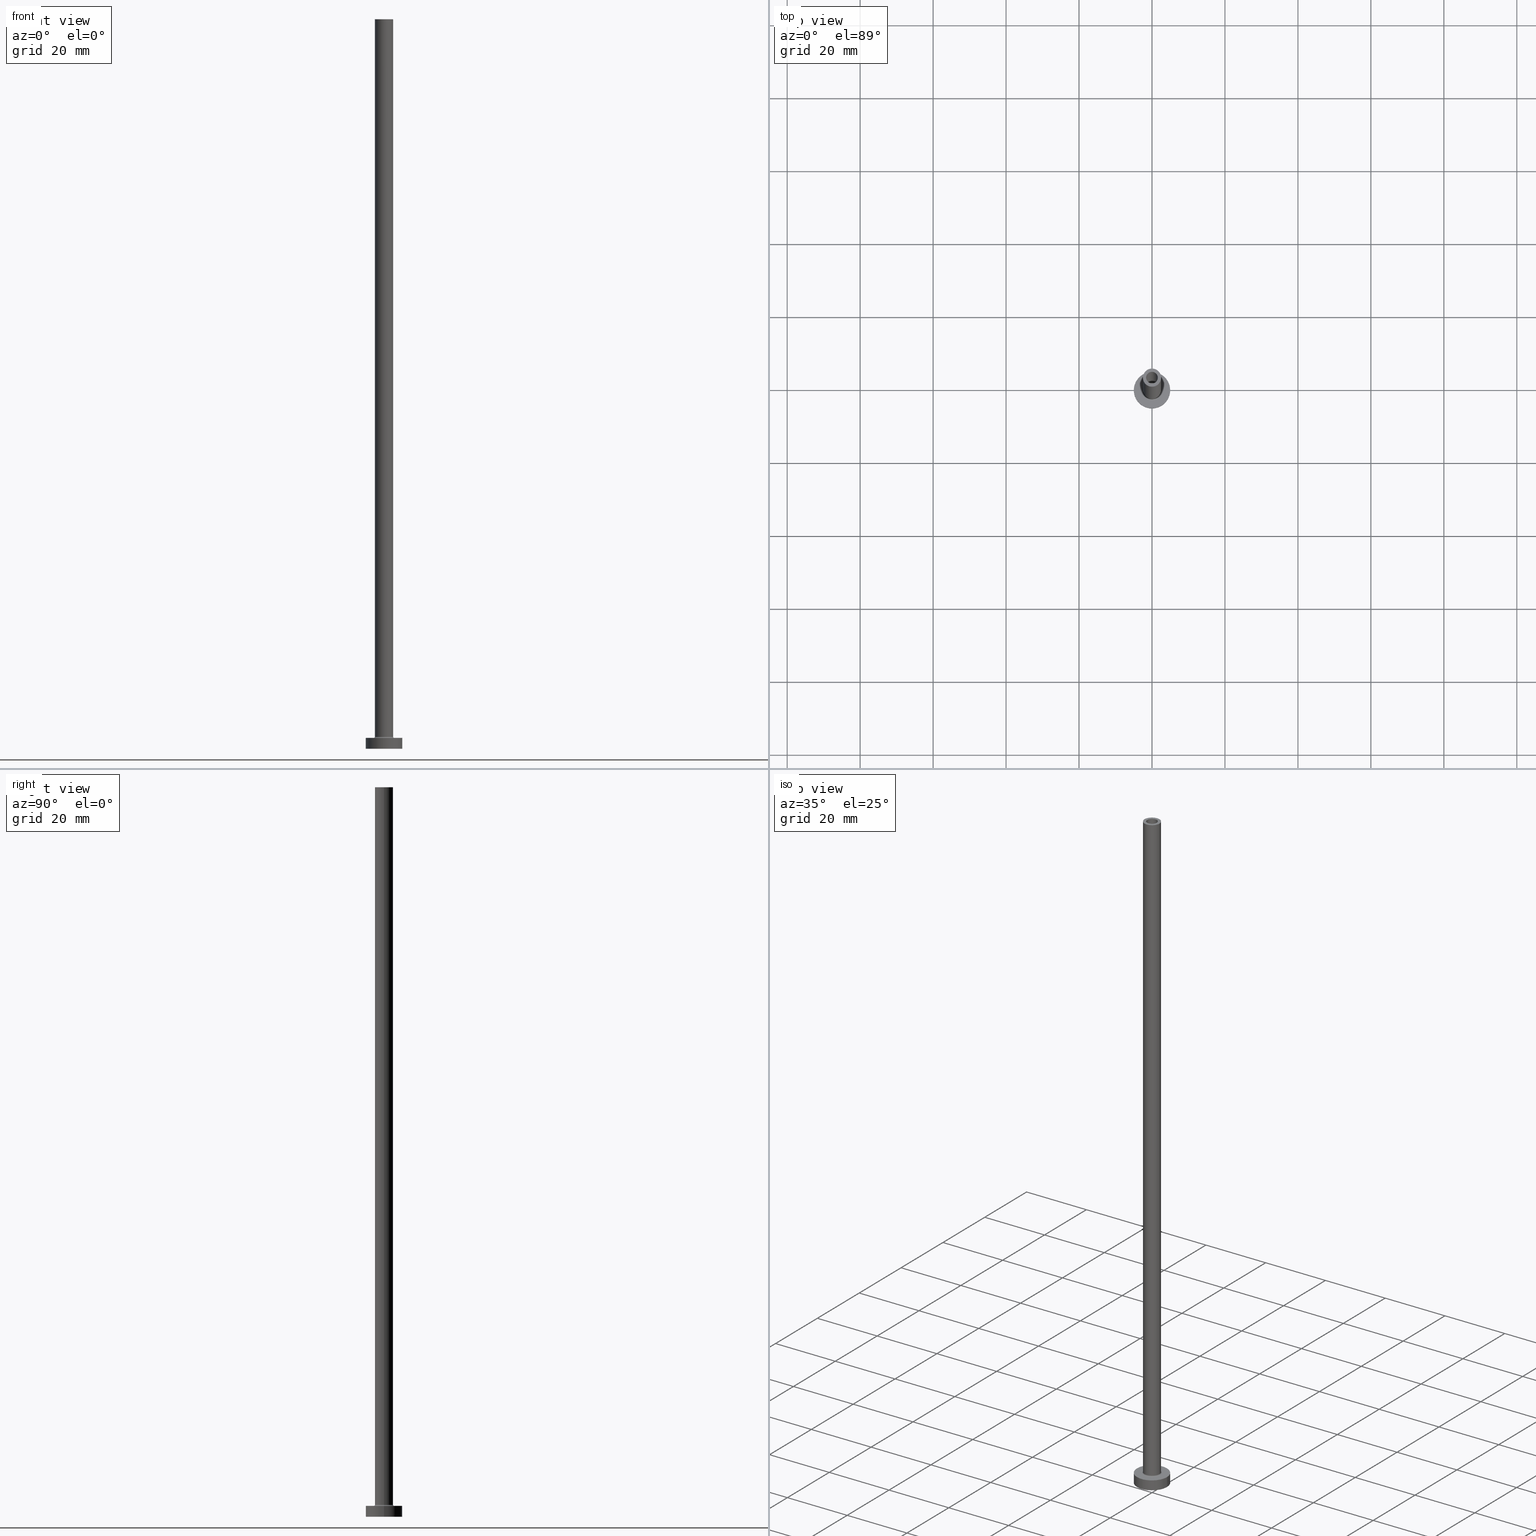
[diagram: canonical four-view strip — front | top / right | iso, engineering-drawing reading convention]
A machine part, canonical four-view strip (front | top / right | iso — engineering-drawing reading convention). The complete STEP part file that produces these views, byte-faithful:
ISO-10303-21;
HEADER;
FILE_DESCRIPTION (( 'STEP AP203' ),
    '1' );
FILE_NAME ('9bd3.STEP',
    '2023-02-13T12:02:04',
    ( '' ),
    ( '' ),
    'SwSTEP 2.0',
    'SolidWorks 2019',
    '' );
FILE_SCHEMA (( 'CONFIG_CONTROL_DESIGN' ));
ENDSEC;

DATA;
#1 = ADVANCED_FACE ( 'NONE', ( #386 ), #74, .T. ) ;
#2 = VERTEX_POINT ( 'NONE', #145 ) ;
#3 = DIRECTION ( 'NONE',  ( 1.000000000000000000, 0.000000000000000000, -0.000000000000000000 ) ) ;
#4 = ORIENTED_EDGE ( 'NONE', *, *, #111, .F. ) ;
#5 = CARTESIAN_POINT ( 'NONE',  ( -1.600000000000000089, 0.000000000000000000, 200.0000000000000000 ) ) ;
#6 = CC_DESIGN_PERSON_AND_ORGANIZATION_ASSIGNMENT ( #311, #374, ( #148 ) ) ;
#7 = CARTESIAN_POINT ( 'NONE',  ( 0.000000000000000000, 0.000000000000000000, 155.0000000000000284 ) ) ;
#8 = DIRECTION ( 'NONE',  ( 1.000000000000000000, 0.000000000000000000, 0.000000000000000000 ) ) ;
#9 = AXIS2_PLACEMENT_3D ( 'NONE', #300, #395, #326 ) ;
#10 = LOCAL_TIME ( 13, 2, 4.000000000000000000, #306 ) ;
#11 = DIRECTION ( 'NONE',  ( -0.000000000000000000, -0.000000000000000000, -1.000000000000000000 ) ) ;
#12 = VERTEX_POINT ( 'NONE', #288 ) ;
#13 = CARTESIAN_POINT ( 'NONE',  ( -1.600000000000000089, 0.000000000000000000, 155.0000000000000284 ) ) ;
#14 = EDGE_LOOP ( 'NONE', ( #22, #177, #339, #159 ) ) ;
#15 = ADVANCED_FACE ( 'NONE', ( #69 ), #112, .T. ) ;
#16 = DIRECTION ( 'NONE',  ( 1.000000000000000000, 0.000000000000000000, 0.000000000000000000 ) ) ;
#17 = CALENDAR_DATE ( 2023, 13, 2 ) ;
#18 = ORIENTED_EDGE ( 'NONE', *, *, #324, .T. ) ;
#19 = AXIS2_PLACEMENT_3D ( 'NONE', #289, #460, #149 ) ;
#20 = DIRECTION ( 'NONE',  ( 1.000000000000000000, 0.000000000000000000, 0.000000000000000000 ) ) ;
#21 = APPROVAL_STATUS ( 'not_yet_approved' ) ;
#22 = ORIENTED_EDGE ( 'NONE', *, *, #83, .T. ) ;
#23 = CARTESIAN_POINT ( 'NONE',  ( 0.000000000000000000, 0.000000000000000000, 3.299999999999997158 ) ) ;
#24 = APPROVAL_DATE_TIME ( #54, #211 ) ;
#25 = ORIENTED_EDGE ( 'NONE', *, *, #93, .T. ) ;
#26 = CARTESIAN_POINT ( 'NONE',  ( 2.799999999999999822, 0.000000000000000000, 2.999999999999998668 ) ) ;
#27 = CC_DESIGN_APPROVAL ( #144, ( #105 ) ) ;
#28 = DIRECTION ( 'NONE',  ( 0.000000000000000000, 0.000000000000000000, 1.000000000000000000 ) ) ;
#29 = ADVANCED_FACE ( 'NONE', ( #381, #178 ), #72, .F. ) ;
#30 = AXIS2_PLACEMENT_3D ( 'NONE', #276, #210, #143 ) ;
#31 = SHAPE_DEFINITION_REPRESENTATION ( #215, #96 ) ;
#32 = CARTESIAN_POINT ( 'NONE',  ( 2.500000000000000000, 3.061616997868383141E-16, 3.299999999999997158 ) ) ;
#33 = CC_DESIGN_DATE_AND_TIME_ASSIGNMENT ( #216, #100, ( #105 ) ) ;
#34 = DIRECTION ( 'NONE',  ( -1.000000000000000000, 0.000000000000000000, 0.000000000000000000 ) ) ;
#35 = AXIS2_PLACEMENT_3D ( 'NONE', #387, #362, #393 ) ;
#36 = ORIENTED_EDGE ( 'NONE', *, *, #420, .F. ) ;
#37 = CC_DESIGN_SECURITY_CLASSIFICATION ( #105, ( #148 ) ) ;
#38 = PLANE ( 'NONE',  #454 ) ;
#39 = EDGE_CURVE ( 'NONE', #52, #233, #78, .T. ) ;
#40 = CARTESIAN_POINT ( 'NONE',  ( 0.000000000000000000, 0.000000000000000000, 159.9497474683058726 ) ) ;
#41 = AXIS2_PLACEMENT_3D ( 'NONE', #357, #405, #50 ) ;
#42 = EDGE_LOOP ( 'NONE', ( #172, #456 ) ) ;
#43 = DIRECTION ( 'NONE',  ( 0.000000000000000000, 0.000000000000000000, 1.000000000000000000 ) ) ;
#44 = CC_DESIGN_PERSON_AND_ORGANIZATION_ASSIGNMENT ( #399, #342, ( #452 ) ) ;
#45 = DIRECTION ( 'NONE',  ( 0.000000000000000000, 0.000000000000000000, 1.000000000000000000 ) ) ;
#46 = EDGE_LOOP ( 'NONE', ( #365, #187, #292, #240 ) ) ;
#47 = DIRECTION ( 'NONE',  ( 0.000000000000000000, 0.000000000000000000, 1.000000000000000000 ) ) ;
#48 = VERTEX_POINT ( 'NONE', #90 ) ;
#49 = DIRECTION ( 'NONE',  ( 1.000000000000000000, 0.000000000000000000, 0.000000000000000000 ) ) ;
#50 = DIRECTION ( 'NONE',  ( -1.000000000000000000, 1.224646799147353207E-16, 0.000000000000000000 ) ) ;
#51 = DATE_TIME_ROLE ( 'creation_date' ) ;
#52 = VERTEX_POINT ( 'NONE', #297 ) ;
#53 = AXIS2_PLACEMENT_3D ( 'NONE', #392, #122, #331 ) ;
#54 = DATE_AND_TIME ( #272, #10 ) ;
#55 = VERTEX_POINT ( 'NONE', #271 ) ;
#56 = PRODUCT_RELATED_PRODUCT_CATEGORY ( 'detail', '', ( #251 ) ) ;
#57 = DIRECTION ( 'NONE',  ( 1.000000000000000000, 0.000000000000000000, 0.000000000000000000 ) ) ;
#58 = CALENDAR_DATE ( 2023, 13, 2 ) ;
#59 = CARTESIAN_POINT ( 'NONE',  ( 1.750000000000000000, 2.143131898507868297E-16, 0.000000000000000000 ) ) ;
#60 = CIRCLE ( 'NONE', #63, 1.600000000000000089 ) ;
#61 = AXIS2_PLACEMENT_3D ( 'NONE', #440, #338, #85 ) ;
#62 = ADVANCED_FACE ( 'NONE', ( #127 ), #234, .F. ) ;
#63 = AXIS2_PLACEMENT_3D ( 'NONE', #366, #426, #189 ) ;
#64 = CIRCLE ( 'NONE', #126, 1.600000000000000089 ) ;
#65 = FACE_OUTER_BOUND ( 'NONE', #307, .T. ) ;
#66 = EDGE_CURVE ( 'NONE', #233, #12, #354, .T. ) ;
#67 = ORIENTED_EDGE ( 'NONE', *, *, #130, .T. ) ;
#68 = CARTESIAN_POINT ( 'NONE',  ( 0.000000000000000000, 0.000000000000000000, 155.0000000000000284 ) ) ;
#69 = FACE_OUTER_BOUND ( 'NONE', #106, .T. ) ;
#70 = CARTESIAN_POINT ( 'NONE',  ( 2.500000000000000000, 3.061616997868383141E-16, 200.0000000000000000 ) ) ;
#71 = CIRCLE ( 'NONE', #294, 0.2999999999999999334 ) ;
#72 = PLANE ( 'NONE',  #275 ) ;
#73 = CC_DESIGN_PERSON_AND_ORGANIZATION_ASSIGNMENT ( #160, #433, ( #251 ) ) ;
#74 = CYLINDRICAL_SURFACE ( 'NONE', #370, 2.500000000000000000 ) ;
#75 = CARTESIAN_POINT ( 'NONE',  ( 0.000000000000000000, 0.000000000000000000, 200.0000000000000000 ) ) ;
#76 = DIRECTION ( 'NONE',  ( -0.000000000000000000, -0.000000000000000000, -1.000000000000000000 ) ) ;
#77 = ORIENTED_EDGE ( 'NONE', *, *, #340, .F. ) ;
#78 = LINE ( 'NONE', #87, #315 ) ;
#79 = DIRECTION ( 'NONE',  ( 1.000000000000000000, 0.000000000000000000, 0.000000000000000000 ) ) ;
#80 = AXIS2_PLACEMENT_3D ( 'NONE', #151, #82, #49 ) ;
#81 = VERTEX_POINT ( 'NONE', #328 ) ;
#82 = DIRECTION ( 'NONE',  ( 0.000000000000000000, 0.000000000000000000, 1.000000000000000000 ) ) ;
#83 = EDGE_CURVE ( 'NONE', #352, #220, #60, .T. ) ;
#84 = CARTESIAN_POINT ( 'NONE',  ( 5.000000000000000000, 6.123233995736766282E-16, 3.000000000000000000 ) ) ;
#85 = DIRECTION ( 'NONE',  ( 1.000000000000000000, 0.000000000000000000, 0.000000000000000000 ) ) ;
#86 = ORIENTED_EDGE ( 'NONE', *, *, #66, .F. ) ;
#87 = CARTESIAN_POINT ( 'NONE',  ( -2.500000000000000000, 0.000000000000000000, 200.0000000000000000 ) ) ;
#88 = CARTESIAN_POINT ( 'NONE',  ( 0.000000000000000000, 0.000000000000000000, 155.0000000000000284 ) ) ;
#89 = ORIENTED_EDGE ( 'NONE', *, *, #66, .T. ) ;
#90 = CARTESIAN_POINT ( 'NONE',  ( 5.000000000000000000, 6.123233995736766282E-16, 0.000000000000000000 ) ) ;
#91 = APPLICATION_PROTOCOL_DEFINITION ( 'international standard', 'config_control_design', 1994, #248 ) ;
#92 = EDGE_LOOP ( 'NONE', ( #223, #169 ) ) ;
#93 = EDGE_CURVE ( 'NONE', #335, #333, #344, .T. ) ;
#94 = AXIS2_PLACEMENT_3D ( 'NONE', #23, #28, #170 ) ;
#95 = AXIS2_PLACEMENT_3D ( 'NONE', #129, #228, #361 ) ;
#96 = ADVANCED_BREP_SHAPE_REPRESENTATION ( '9bd3', ( #101, #184 ), #257 ) ;
#97 = PERSON_AND_ORGANIZATION_ROLE ( 'classification_officer' ) ;
#98 = CARTESIAN_POINT ( 'NONE',  ( 1.750000000000000000, 2.143131898507868297E-16, 159.9497474683058726 ) ) ;
#99 = ADVANCED_FACE ( 'NONE', ( #432 ), #269, .F. ) ;
#100 = DATE_TIME_ROLE ( 'classification_date' ) ;
#101 = MANIFOLD_SOLID_BREP ( 'Odebrat vysunut�m4', #239 ) ;
#102 = ORIENTED_EDGE ( 'NONE', *, *, #420, .T. ) ;
#103 = VECTOR ( 'NONE', #147, 1000.000000000000000 ) ;
#104 = CYLINDRICAL_SURFACE ( 'NONE', #281, 1.750000000000000000 ) ;
#105 = SECURITY_CLASSIFICATION ( '', '', #136 ) ;
#106 = EDGE_LOOP ( 'NONE', ( #418, #273, #320, #388 ) ) ;
#107 = DIRECTION ( 'NONE',  ( -0.000000000000000000, -0.000000000000000000, -1.000000000000000000 ) ) ;
#108 = DIRECTION ( 'NONE',  ( 0.000000000000000000, 0.000000000000000000, -1.000000000000000000 ) ) ;
#109 = UNCERTAINTY_MEASURE_WITH_UNIT (LENGTH_MEASURE( 1.000000000000000082E-05 ), #196, 'distance_accuracy_value', 'NONE');
#110 = ORIENTED_EDGE ( 'NONE', *, *, #201, .T. ) ;
#111 = EDGE_CURVE ( 'NONE', #335, #343, #259, .T. ) ;
#112 = CYLINDRICAL_SURFACE ( 'NONE', #183, 5.000000000000000000 ) ;
#113 = CARTESIAN_POINT ( 'NONE',  ( 0.000000000000000000, 0.000000000000000000, 3.299999999999997158 ) ) ;
#114 = CIRCLE ( 'NONE', #146, 2.500000000000000000 ) ;
#115 = DIRECTION ( 'NONE',  ( -1.000000000000000000, 0.000000000000000000, 0.000000000000000000 ) ) ;
#116 = CARTESIAN_POINT ( 'NONE',  ( 0.000000000000000000, 0.000000000000000000, 3.000000000000000000 ) ) ;
#117 = CARTESIAN_POINT ( 'NONE',  ( 0.000000000000000000, 0.000000000000000000, 3.299999999999997158 ) ) ;
#118 = ORIENTED_EDGE ( 'NONE', *, *, #279, .F. ) ;
#119 = DIRECTION ( 'NONE',  ( 1.000000000000000000, 0.000000000000000000, 0.000000000000000000 ) ) ;
#120 = EDGE_LOOP ( 'NONE', ( #218, #330 ) ) ;
#121 = CC_DESIGN_PERSON_AND_ORGANIZATION_ASSIGNMENT ( #175, #97, ( #105 ) ) ;
#122 = DIRECTION ( 'NONE',  ( 0.000000000000000000, 0.000000000000000000, -1.000000000000000000 ) ) ;
#123 = APPLICATION_PROTOCOL_DEFINITION ( 'international standard', 'config_control_design', 1994, #190 ) ;
#124 = AXIS2_PLACEMENT_3D ( 'NONE', #75, #107, #181 ) ;
#125 = ORIENTED_EDGE ( 'NONE', *, *, #225, .T. ) ;
#126 = AXIS2_PLACEMENT_3D ( 'NONE', #267, #238, #79 ) ;
#127 = FACE_OUTER_BOUND ( 'NONE', #431, .T. ) ;
#128 = ORIENTED_EDGE ( 'NONE', *, *, #353, .F. ) ;
#129 = CARTESIAN_POINT ( 'NONE',  ( 0.000000000000000000, 0.000000000000000000, 0.000000000000000000 ) ) ;
#130 = EDGE_CURVE ( 'NONE', #233, #359, #114, .T. ) ;
#131 = CALENDAR_DATE ( 2023, 13, 2 ) ;
#132 = VERTEX_POINT ( 'NONE', #13 ) ;
#133 = DIRECTION ( 'NONE',  ( 0.000000000000000000, 0.000000000000000000, -1.000000000000000000 ) ) ;
#134 = AXIS2_PLACEMENT_3D ( 'NONE', #377, #280, #209 ) ;
#135 = LOCAL_TIME ( 13, 2, 4.000000000000000000, #199 ) ;
#136 = SECURITY_CLASSIFICATION_LEVEL ( 'unclassified' ) ;
#137 = DIRECTION ( 'NONE',  ( 0.000000000000000000, 0.000000000000000000, -1.000000000000000000 ) ) ;
#138 = COORDINATED_UNIVERSAL_TIME_OFFSET ( 1, 0, .AHEAD. ) ;
#139 = CC_DESIGN_DATE_AND_TIME_ASSIGNMENT ( #367, #51, ( #452 ) ) ;
#140 = FACE_OUTER_BOUND ( 'NONE', #46, .T. ) ;
#141 = AXIS2_PLACEMENT_3D ( 'NONE', #116, #185, #8 ) ;
#142 = ORIENTED_EDGE ( 'NONE', *, *, #176, .F. ) ;
#143 = DIRECTION ( 'NONE',  ( 1.000000000000000000, 0.000000000000000000, 0.000000000000000000 ) ) ;
#144 = APPROVAL ( #246, 'NEUR�EN�' ) ;
#145 = CARTESIAN_POINT ( 'NONE',  ( -1.750000000000000000, 0.000000000000000000, 155.0000000000000284 ) ) ;
#146 = AXIS2_PLACEMENT_3D ( 'NONE', #117, #43, #20 ) ;
#147 = DIRECTION ( 'NONE',  ( 0.000000000000000000, 0.000000000000000000, -1.000000000000000000 ) ) ;
#148 = PRODUCT_DEFINITION_FORMATION_WITH_SPECIFIED_SOURCE ( 'LIBOVOLN�', '', #251, .NOT_KNOWN. ) ;
#149 = DIRECTION ( 'NONE',  ( 1.000000000000000000, 0.000000000000000000, -0.000000000000000000 ) ) ;
#150 = EDGE_CURVE ( 'NONE', #359, #268, #71, .T. ) ;
#151 = CARTESIAN_POINT ( 'NONE',  ( 0.000000000000000000, 0.000000000000000000, 3.299999999999997158 ) ) ;
#152 = CARTESIAN_POINT ( 'NONE',  ( 0.000000000000000000, 0.000000000000000000, 200.0000000000000000 ) ) ;
#153 = CIRCLE ( 'NONE', #163, 1.750000000000000000 ) ;
#154 = DIRECTION ( 'NONE',  ( 0.000000000000000000, 0.000000000000000000, 1.000000000000000000 ) ) ;
#155 = CYLINDRICAL_SURFACE ( 'NONE', #124, 2.500000000000000000 ) ;
#156 = DIRECTION ( 'NONE',  ( 0.000000000000000000, -1.000000000000000000, 0.000000000000000000 ) ) ;
#157 = MECHANICAL_CONTEXT ( 'NONE', #248, 'mechanical' ) ;
#158 = EDGE_CURVE ( 'NONE', #55, #2, #153, .T. ) ;
#159 = ORIENTED_EDGE ( 'NONE', *, *, #308, .F. ) ;
#160 = PERSON_AND_ORGANIZATION ( #446, #205 ) ;
#161 = EDGE_LOOP ( 'NONE', ( #200, #36 ) ) ;
#162 = FACE_OUTER_BOUND ( 'NONE', #299, .T. ) ;
#163 = AXIS2_PLACEMENT_3D ( 'NONE', #7, #154, #119 ) ;
#164 = ORIENTED_EDGE ( 'NONE', *, *, #340, .T. ) ;
#165 = APPROVAL_PERSON_ORGANIZATION ( #437, #369, #171 ) ;
#166 = EDGE_CURVE ( 'NONE', #2, #180, #439, .T. ) ;
#167 = CARTESIAN_POINT ( 'NONE',  ( -1.750000000000000000, 0.000000000000000000, 159.9497474683058726 ) ) ;
#168 = APPROVAL_STATUS ( 'not_yet_approved' ) ;
#169 = ORIENTED_EDGE ( 'NONE', *, *, #285, .T. ) ;
#170 = DIRECTION ( 'NONE',  ( 1.000000000000000000, 0.000000000000000000, 0.000000000000000000 ) ) ;
#171 = APPROVAL_ROLE ( '' ) ;
#172 = ORIENTED_EDGE ( 'NONE', *, *, #448, .T. ) ;
#173 = VECTOR ( 'NONE', #230, 1000.000000000000000 ) ;
#174 = EDGE_CURVE ( 'NONE', #180, #270, #336, .T. ) ;
#175 = PERSON_AND_ORGANIZATION ( #446, #205 ) ;
#176 = EDGE_CURVE ( 'NONE', #52, #350, #408, .T. ) ;
#177 = ORIENTED_EDGE ( 'NONE', *, *, #241, .T. ) ;
#178 = FACE_OUTER_BOUND ( 'NONE', #262, .T. ) ;
#179 = FACE_OUTER_BOUND ( 'NONE', #92, .T. ) ;
#180 = VERTEX_POINT ( 'NONE', #195 ) ;
#181 = DIRECTION ( 'NONE',  ( -1.000000000000000000, 0.000000000000000000, 0.000000000000000000 ) ) ;
#182 = EDGE_CURVE ( 'NONE', #333, #48, #295, .T. ) ;
#183 = AXIS2_PLACEMENT_3D ( 'NONE', #255, #317, #115 ) ;
#184 = AXIS2_PLACEMENT_3D ( 'NONE', #235, #45, #332 ) ;
#185 = DIRECTION ( 'NONE',  ( 0.000000000000000000, 0.000000000000000000, 1.000000000000000000 ) ) ;
#186 = CARTESIAN_POINT ( 'NONE',  ( -1.600000000000000089, 0.000000000000000000, 200.0000000000000000 ) ) ;
#187 = ORIENTED_EDGE ( 'NONE', *, *, #414, .T. ) ;
#188 = DIRECTION ( 'NONE',  ( 0.000000000000000000, 0.000000000000000000, 1.000000000000000000 ) ) ;
#189 = DIRECTION ( 'NONE',  ( 1.000000000000000000, 0.000000000000000000, 0.000000000000000000 ) ) ;
#190 = APPLICATION_CONTEXT ( 'configuration controlled 3d designs of mechanical parts and assemblies' ) ;
#191 = VECTOR ( 'NONE', #137, 1000.000000000000000 ) ;
#192 = CC_DESIGN_APPROVAL ( #369, ( #452 ) ) ;
#193 = DIRECTION ( 'NONE',  ( 0.000000000000000000, 0.000000000000000000, -1.000000000000000000 ) ) ;
#194 = ORIENTED_EDGE ( 'NONE', *, *, #324, .F. ) ;
#195 = CARTESIAN_POINT ( 'NONE',  ( -1.750000000000000000, 0.000000000000000000, 0.000000000000000000 ) ) ;
#196 =( LENGTH_UNIT ( ) NAMED_UNIT ( * ) SI_UNIT ( .MILLI., .METRE. ) );
#197 = ORIENTED_EDGE ( 'NONE', *, *, #201, .F. ) ;
#198 = CARTESIAN_POINT ( 'NONE',  ( 0.000000000000000000, 0.000000000000000000, 200.0000000000000000 ) ) ;
#199 = COORDINATED_UNIVERSAL_TIME_OFFSET ( 1, 0, .AHEAD. ) ;
#200 = ORIENTED_EDGE ( 'NONE', *, *, #174, .F. ) ;
#201 = EDGE_CURVE ( 'NONE', #48, #343, #293, .T. ) ;
#202 = PERSON_AND_ORGANIZATION ( #446, #205 ) ;
#203 = AXIS2_PLACEMENT_3D ( 'NONE', #422, #427, #253 ) ;
#204 = ORIENTED_EDGE ( 'NONE', *, *, #158, .T. ) ;
#205 = ORGANIZATION ( 'NEUR�EN�', 'NEUR�EN�', '' ) ;
#206 = DIRECTION ( 'NONE',  ( -0.000000000000000000, -0.000000000000000000, -1.000000000000000000 ) ) ;
#207 = DIRECTION ( 'NONE',  ( 1.000000000000000000, 0.000000000000000000, 0.000000000000000000 ) ) ;
#208 = ORIENTED_EDGE ( 'NONE', *, *, #130, .F. ) ;
#209 = DIRECTION ( 'NONE',  ( -1.000000000000000000, 0.000000000000000000, 0.000000000000000000 ) ) ;
#210 = DIRECTION ( 'NONE',  ( 0.000000000000000000, 0.000000000000000000, 1.000000000000000000 ) ) ;
#211 = APPROVAL ( #168, 'NEUR�EN�' ) ;
#212 = CIRCLE ( 'NONE', #141, 5.000000000000000000 ) ;
#213 = COORDINATED_UNIVERSAL_TIME_OFFSET ( 1, 0, .AHEAD. ) ;
#214 = ADVANCED_FACE ( 'NONE', ( #162 ), #303, .T. ) ;
#215 = PRODUCT_DEFINITION_SHAPE ( 'NONE', 'NONE',  #452 ) ;
#216 = DATE_AND_TIME ( #277, #345 ) ;
#217 = AXIS2_PLACEMENT_3D ( 'NONE', #198, #266, #398 ) ;
#218 = ORIENTED_EDGE ( 'NONE', *, *, #83, .F. ) ;
#219 = FACE_BOUND ( 'NONE', #120, .T. ) ;
#220 = VERTEX_POINT ( 'NONE', #313 ) ;
#221 = CARTESIAN_POINT ( 'NONE',  ( -5.000000000000000000, 0.000000000000000000, 3.000000000000000000 ) ) ;
#222 = DIRECTION ( 'NONE',  ( 0.000000000000000000, 0.000000000000000000, 1.000000000000000000 ) ) ;
#223 = ORIENTED_EDGE ( 'NONE', *, *, #176, .T. ) ;
#224 = CARTESIAN_POINT ( 'NONE',  ( 0.000000000000000000, 0.000000000000000000, 3.000000000000000000 ) ) ;
#225 = EDGE_CURVE ( 'NONE', #350, #359, #341, .T. ) ;
#226 = CARTESIAN_POINT ( 'NONE',  ( 0.000000000000000000, 0.000000000000000000, 0.000000000000000000 ) ) ;
#227 = ORIENTED_EDGE ( 'NONE', *, *, #410, .F. ) ;
#228 = DIRECTION ( 'NONE',  ( -0.000000000000000000, -0.000000000000000000, -1.000000000000000000 ) ) ;
#229 = ORIENTED_EDGE ( 'NONE', *, *, #39, .T. ) ;
#230 = DIRECTION ( 'NONE',  ( -0.000000000000000000, -0.000000000000000000, -1.000000000000000000 ) ) ;
#231 = ADVANCED_FACE ( 'NONE', ( #451 ), #444, .F. ) ;
#232 = DIRECTION ( 'NONE',  ( 1.000000000000000000, 0.000000000000000000, 0.000000000000000000 ) ) ;
#233 = VERTEX_POINT ( 'NONE', #278 ) ;
#234 = CYLINDRICAL_SURFACE ( 'NONE', #397, 1.750000000000000000 ) ;
#235 = CARTESIAN_POINT ( 'NONE',  ( 0.000000000000000000, 0.000000000000000000, 0.000000000000000000 ) ) ;
#236 = ORIENTED_EDGE ( 'NONE', *, *, #166, .F. ) ;
#237 = DIRECTION ( 'NONE',  ( -1.000000000000000000, 0.000000000000000000, 0.000000000000000000 ) ) ;
#238 = DIRECTION ( 'NONE',  ( 0.000000000000000000, 0.000000000000000000, 1.000000000000000000 ) ) ;
#239 = CLOSED_SHELL ( 'NONE', ( #99, #62, #231, #346, #214, #15, #379, #29, #1, #385, #401, #318, #360, #263 ) ) ;
#240 = ORIENTED_EDGE ( 'NONE', *, *, #258, .F. ) ;
#241 = EDGE_CURVE ( 'NONE', #220, #81, #453, .T. ) ;
#242 = ORIENTED_EDGE ( 'NONE', *, *, #279, .T. ) ;
#243 = PERSON_AND_ORGANIZATION ( #446, #205 ) ;
#244 = CIRCLE ( 'NONE', #35, 2.799999999999999822 ) ;
#245 = AXIS2_PLACEMENT_3D ( 'NONE', #226, #402, #232 ) ;
#246 = APPROVAL_STATUS ( 'not_yet_approved' ) ;
#247 = CYLINDRICAL_SURFACE ( 'NONE', #134, 1.600000000000000089 ) ;
#248 = APPLICATION_CONTEXT ( 'configuration controlled 3d designs of mechanical parts and assemblies' ) ;
#249 = DATE_AND_TIME ( #58, #435 ) ;
#250 = ORIENTED_EDGE ( 'NONE', *, *, #174, .T. ) ;
#251 = PRODUCT ( '9bd3', '9bd3', '', ( #157 ) ) ;
#252 = CIRCLE ( 'NONE', #30, 2.500000000000000000 ) ;
#253 = DIRECTION ( 'NONE',  ( 1.000000000000000000, 0.000000000000000000, 0.000000000000000000 ) ) ;
#254 = EDGE_LOOP ( 'NONE', ( #441, #125, #18, #372 ) ) ;
#255 = CARTESIAN_POINT ( 'NONE',  ( 0.000000000000000000, 0.000000000000000000, 3.000000000000000000 ) ) ;
#256 = DIRECTION ( 'NONE',  ( 0.000000000000000000, 0.000000000000000000, 1.000000000000000000 ) ) ;
#257 =( GEOMETRIC_REPRESENTATION_CONTEXT ( 3 ) GLOBAL_UNCERTAINTY_ASSIGNED_CONTEXT ( ( #109 ) ) GLOBAL_UNIT_ASSIGNED_CONTEXT ( ( #196, #358, #298 ) ) REPRESENTATION_CONTEXT ( 'NONE', 'WORKASPACE' ) );
#258 = EDGE_CURVE ( 'NONE', #81, #132, #412, .T. ) ;
#259 = LINE ( 'NONE', #337, #327 ) ;
#260 = ORIENTED_EDGE ( 'NONE', *, *, #225, .F. ) ;
#261 = APPROVAL_DATE_TIME ( #406, #369 ) ;
#262 = EDGE_LOOP ( 'NONE', ( #429, #197 ) ) ;
#263 = ADVANCED_FACE ( 'NONE', ( #140 ), #247, .F. ) ;
#264 = VECTOR ( 'NONE', #133, 1000.000000000000000 ) ;
#265 = CIRCLE ( 'NONE', #391, 1.750000000000000000 ) ;
#266 = DIRECTION ( 'NONE',  ( 0.000000000000000000, 0.000000000000000000, 1.000000000000000000 ) ) ;
#267 = CARTESIAN_POINT ( 'NONE',  ( 0.000000000000000000, 0.000000000000000000, 200.0000000000000000 ) ) ;
#268 = VERTEX_POINT ( 'NONE', #26 ) ;
#269 = CYLINDRICAL_SURFACE ( 'NONE', #53, 1.600000000000000089 ) ;
#270 = VERTEX_POINT ( 'NONE', #59 ) ;
#271 = CARTESIAN_POINT ( 'NONE',  ( 1.750000000000000000, 2.143131898507868297E-16, 155.0000000000000284 ) ) ;
#272 = CALENDAR_DATE ( 2023, 13, 2 ) ;
#273 = ORIENTED_EDGE ( 'NONE', *, *, #93, .F. ) ;
#274 = CARTESIAN_POINT ( 'NONE',  ( 1.600000000000000089, 1.959434878635764737E-16, 200.0000000000000000 ) ) ;
#275 = AXIS2_PLACEMENT_3D ( 'NONE', #319, #222, #355 ) ;
#276 = CARTESIAN_POINT ( 'NONE',  ( 0.000000000000000000, 0.000000000000000000, 200.0000000000000000 ) ) ;
#277 = CALENDAR_DATE ( 2023, 13, 2 ) ;
#278 = CARTESIAN_POINT ( 'NONE',  ( -2.500000000000000000, 0.000000000000000000, 3.299999999999997158 ) ) ;
#279 = EDGE_CURVE ( 'NONE', #55, #270, #447, .T. ) ;
#280 = DIRECTION ( 'NONE',  ( 0.000000000000000000, 0.000000000000000000, -1.000000000000000000 ) ) ;
#281 = AXIS2_PLACEMENT_3D ( 'NONE', #283, #108, #34 ) ;
#282 = DIRECTION ( 'NONE',  ( -1.000000000000000000, 0.000000000000000000, 0.000000000000000000 ) ) ;
#283 = CARTESIAN_POINT ( 'NONE',  ( 0.000000000000000000, 0.000000000000000000, 159.9497474683058726 ) ) ;
#284 = DIRECTION ( 'NONE',  ( 0.000000000000000000, 0.000000000000000000, 1.000000000000000000 ) ) ;
#285 = EDGE_CURVE ( 'NONE', #350, #52, #252, .T. ) ;
#286 = CIRCLE ( 'NONE', #80, 2.500000000000000000 ) ;
#287 = FACE_OUTER_BOUND ( 'NONE', #325, .T. ) ;
#288 = CARTESIAN_POINT ( 'NONE',  ( -2.799999999999999822, 3.429011037612589276E-16, 2.999999999999998668 ) ) ;
#289 = CARTESIAN_POINT ( 'NONE',  ( 0.000000000000000000, 0.000000000000000000, 200.0000000000000000 ) ) ;
#290 = DESIGN_CONTEXT ( 'detailed design', #190, 'design' ) ;
#291 = CC_DESIGN_PERSON_AND_ORGANIZATION_ASSIGNMENT ( #449, #378, ( #148 ) ) ;
#292 = ORIENTED_EDGE ( 'NONE', *, *, #308, .T. ) ;
#293 = CIRCLE ( 'NONE', #417, 5.000000000000000000 ) ;
#294 = AXIS2_PLACEMENT_3D ( 'NONE', #400, #156, #430 ) ;
#295 = LINE ( 'NONE', #84, #173 ) ;
#296 = CARTESIAN_POINT ( 'NONE',  ( -5.000000000000000000, 0.000000000000000000, 0.000000000000000000 ) ) ;
#297 = CARTESIAN_POINT ( 'NONE',  ( -2.500000000000000000, 0.000000000000000000, 200.0000000000000000 ) ) ;
#298 =( NAMED_UNIT ( * ) SI_UNIT ( $, .STERADIAN. ) SOLID_ANGLE_UNIT ( ) );
#299 = EDGE_LOOP ( 'NONE', ( #77, #302, #110, #4 ) ) ;
#300 = CARTESIAN_POINT ( 'NONE',  ( 0.000000000000000000, 0.000000000000000000, 3.000000000000000000 ) ) ;
#301 = DIRECTION ( 'NONE',  ( -0.000000000000000000, -0.000000000000000000, -1.000000000000000000 ) ) ;
#302 = ORIENTED_EDGE ( 'NONE', *, *, #182, .T. ) ;
#303 = CYLINDRICAL_SURFACE ( 'NONE', #424, 5.000000000000000000 ) ;
#304 = ORIENTED_EDGE ( 'NONE', *, *, #150, .F. ) ;
#305 = DIRECTION ( 'NONE',  ( 0.000000000000000000, 0.000000000000000000, -1.000000000000000000 ) ) ;
#306 = COORDINATED_UNIVERSAL_TIME_OFFSET ( 1, 0, .AHEAD. ) ;
#307 = EDGE_LOOP ( 'NONE', ( #25, #164 ) ) ;
#308 = EDGE_CURVE ( 'NONE', #352, #132, #457, .T. ) ;
#309 = CARTESIAN_POINT ( 'NONE',  ( 0.000000000000000000, 0.000000000000000000, 0.000000000000000000 ) ) ;
#310 = VECTOR ( 'NONE', #305, 1000.000000000000000 ) ;
#311 = PERSON_AND_ORGANIZATION ( #446, #205 ) ;
#312 = CARTESIAN_POINT ( 'NONE',  ( 2.500000000000000000, 3.061616997868383141E-16, 200.0000000000000000 ) ) ;
#313 = CARTESIAN_POINT ( 'NONE',  ( 1.600000000000000089, 1.959434878635764737E-16, 200.0000000000000000 ) ) ;
#314 = ORIENTED_EDGE ( 'NONE', *, *, #448, .F. ) ;
#315 = VECTOR ( 'NONE', #76, 1000.000000000000000 ) ;
#316 = APPROVAL_DATE_TIME ( #249, #144 ) ;
#317 = DIRECTION ( 'NONE',  ( -0.000000000000000000, -0.000000000000000000, -1.000000000000000000 ) ) ;
#318 = ADVANCED_FACE ( 'NONE', ( #380 ), #104, .F. ) ;
#319 = CARTESIAN_POINT ( 'NONE',  ( 0.000000000000000000, 0.000000000000000000, 0.000000000000000000 ) ) ;
#320 = ORIENTED_EDGE ( 'NONE', *, *, #111, .T. ) ;
#321 = PLANE ( 'NONE',  #375 ) ;
#322 = AXIS2_PLACEMENT_3D ( 'NONE', #373, #413, #57 ) ;
#323 = FACE_OUTER_BOUND ( 'NONE', #443, .T. ) ;
#324 = EDGE_CURVE ( 'NONE', #359, #233, #286, .T. ) ;
#325 = EDGE_LOOP ( 'NONE', ( #86, #194, #368, #227 ) ) ;
#326 = DIRECTION ( 'NONE',  ( 1.000000000000000000, 0.000000000000000000, 0.000000000000000000 ) ) ;
#327 = VECTOR ( 'NONE', #11, 1000.000000000000000 ) ;
#328 = CARTESIAN_POINT ( 'NONE',  ( 1.600000000000000089, 1.959434878635764737E-16, 155.0000000000000284 ) ) ;
#329 = DIRECTION ( 'NONE',  ( 1.000000000000000000, 0.000000000000000000, 0.000000000000000000 ) ) ;
#330 = ORIENTED_EDGE ( 'NONE', *, *, #414, .F. ) ;
#331 = DIRECTION ( 'NONE',  ( -1.000000000000000000, 0.000000000000000000, 0.000000000000000000 ) ) ;
#332 = DIRECTION ( 'NONE',  ( 1.000000000000000000, 0.000000000000000000, 0.000000000000000000 ) ) ;
#333 = VERTEX_POINT ( 'NONE', #404 ) ;
#334 = COORDINATED_UNIVERSAL_TIME_OFFSET ( 1, 0, .AHEAD. ) ;
#335 = VERTEX_POINT ( 'NONE', #221 ) ;
#336 = CIRCLE ( 'NONE', #95, 1.750000000000000000 ) ;
#337 = CARTESIAN_POINT ( 'NONE',  ( -5.000000000000000000, 0.000000000000000000, 3.000000000000000000 ) ) ;
#338 = DIRECTION ( 'NONE',  ( -0.000000000000000000, -0.000000000000000000, -1.000000000000000000 ) ) ;
#339 = ORIENTED_EDGE ( 'NONE', *, *, #436, .F. ) ;
#340 = EDGE_CURVE ( 'NONE', #333, #335, #212, .T. ) ;
#341 = LINE ( 'NONE', #312, #348 ) ;
#342 = PERSON_AND_ORGANIZATION_ROLE ( 'creator' ) ;
#343 = VERTEX_POINT ( 'NONE', #296 ) ;
#344 = CIRCLE ( 'NONE', #9, 5.000000000000000000 ) ;
#345 = LOCAL_TIME ( 13, 2, 4.000000000000000000, #138 ) ;
#346 = ADVANCED_FACE ( 'NONE', ( #419 ), #155, .T. ) ;
#347 = APPROVAL_ROLE ( '' ) ;
#348 = VECTOR ( 'NONE', #411, 1000.000000000000000 ) ;
#349 = AXIS2_PLACEMENT_3D ( 'NONE', #88, #442, #207 ) ;
#350 = VERTEX_POINT ( 'NONE', #70 ) ;
#351 = FACE_BOUND ( 'NONE', #42, .T. ) ;
#352 = VERTEX_POINT ( 'NONE', #5 ) ;
#353 = EDGE_CURVE ( 'NONE', #2, #55, #459, .T. ) ;
#354 = CIRCLE ( 'NONE', #41, 0.2999999999999999334 ) ;
#355 = DIRECTION ( 'NONE',  ( 1.000000000000000000, 0.000000000000000000, -0.000000000000000000 ) ) ;
#356 = EDGE_LOOP ( 'NONE', ( #208, #89, #314, #304 ) ) ;
#357 = CARTESIAN_POINT ( 'NONE',  ( -2.799999999999999822, 3.429011037612588783E-16, 3.299999999999997158 ) ) ;
#358 =( NAMED_UNIT ( * ) PLANE_ANGLE_UNIT ( ) SI_UNIT ( $, .RADIAN. ) );
#359 = VERTEX_POINT ( 'NONE', #32 ) ;
#360 = ADVANCED_FACE ( 'NONE', ( #382, #323 ), #38, .F. ) ;
#361 = DIRECTION ( 'NONE',  ( 1.000000000000000000, 0.000000000000000000, 0.000000000000000000 ) ) ;
#362 = DIRECTION ( 'NONE',  ( -0.000000000000000000, -0.000000000000000000, -1.000000000000000000 ) ) ;
#363 = ORIENTED_EDGE ( 'NONE', *, *, #158, .F. ) ;
#364 = CARTESIAN_POINT ( 'NONE',  ( 0.000000000000000000, 0.000000000000000000, 0.000000000000000000 ) ) ;
#365 = ORIENTED_EDGE ( 'NONE', *, *, #241, .F. ) ;
#366 = CARTESIAN_POINT ( 'NONE',  ( 0.000000000000000000, 0.000000000000000000, 200.0000000000000000 ) ) ;
#367 = DATE_AND_TIME ( #17, #425 ) ;
#368 = ORIENTED_EDGE ( 'NONE', *, *, #150, .T. ) ;
#369 = APPROVAL ( #21, 'NEUR�EN�' ) ;
#370 = AXIS2_PLACEMENT_3D ( 'NONE', #152, #416, #423 ) ;
#371 = APPROVAL_ROLE ( '' ) ;
#372 = ORIENTED_EDGE ( 'NONE', *, *, #39, .F. ) ;
#373 = CARTESIAN_POINT ( 'NONE',  ( 0.000000000000000000, 0.000000000000000000, 155.0000000000000284 ) ) ;
#374 = PERSON_AND_ORGANIZATION_ROLE ( 'design_supplier' ) ;
#375 = AXIS2_PLACEMENT_3D ( 'NONE', #224, #284, #3 ) ;
#376 = APPROVAL_PERSON_ORGANIZATION ( #202, #211, #371 ) ;
#377 = CARTESIAN_POINT ( 'NONE',  ( 0.000000000000000000, 0.000000000000000000, 200.0000000000000000 ) ) ;
#378 = PERSON_AND_ORGANIZATION_ROLE ( 'creator' ) ;
#379 = ADVANCED_FACE ( 'NONE', ( #351, #65 ), #321, .T. ) ;
#380 = FACE_OUTER_BOUND ( 'NONE', #438, .T. ) ;
#381 = FACE_BOUND ( 'NONE', #161, .T. ) ;
#382 = FACE_BOUND ( 'NONE', #415, .T. ) ;
#383 = CC_DESIGN_APPROVAL ( #211, ( #148 ) ) ;
#384 = DIRECTION ( 'NONE',  ( 1.000000000000000000, 0.000000000000000000, -0.000000000000000000 ) ) ;
#385 = ADVANCED_FACE ( 'NONE', ( #219, #179 ), #458, .T. ) ;
#386 = FACE_OUTER_BOUND ( 'NONE', #421, .T. ) ;
#387 = CARTESIAN_POINT ( 'NONE',  ( 0.000000000000000000, 0.000000000000000000, 3.000000000000000000 ) ) ;
#388 = ORIENTED_EDGE ( 'NONE', *, *, #428, .T. ) ;
#389 = DIRECTION ( 'NONE',  ( 1.000000000000000000, 0.000000000000000000, 0.000000000000000000 ) ) ;
#390 = AXIS2_PLACEMENT_3D ( 'NONE', #113, #256, #389 ) ;
#391 = AXIS2_PLACEMENT_3D ( 'NONE', #309, #301, #329 ) ;
#392 = CARTESIAN_POINT ( 'NONE',  ( 0.000000000000000000, 0.000000000000000000, 200.0000000000000000 ) ) ;
#393 = DIRECTION ( 'NONE',  ( 1.000000000000000000, 0.000000000000000000, 0.000000000000000000 ) ) ;
#394 = ORIENTED_EDGE ( 'NONE', *, *, #166, .T. ) ;
#395 = DIRECTION ( 'NONE',  ( 0.000000000000000000, 0.000000000000000000, 1.000000000000000000 ) ) ;
#396 = ORIENTED_EDGE ( 'NONE', *, *, #258, .T. ) ;
#397 = AXIS2_PLACEMENT_3D ( 'NONE', #40, #193, #237 ) ;
#398 = DIRECTION ( 'NONE',  ( 1.000000000000000000, 0.000000000000000000, 0.000000000000000000 ) ) ;
#399 = PERSON_AND_ORGANIZATION ( #446, #205 ) ;
#400 = CARTESIAN_POINT ( 'NONE',  ( 2.799999999999999822, 0.000000000000000000, 3.299999999999997158 ) ) ;
#401 = ADVANCED_FACE ( 'NONE', ( #287 ), #434, .F. ) ;
#402 = DIRECTION ( 'NONE',  ( 0.000000000000000000, 0.000000000000000000, 1.000000000000000000 ) ) ;
#403 = ORIENTED_EDGE ( 'NONE', *, *, #436, .T. ) ;
#404 = CARTESIAN_POINT ( 'NONE',  ( 5.000000000000000000, 6.123233995736766282E-16, 3.000000000000000000 ) ) ;
#405 = DIRECTION ( 'NONE',  ( 1.224646799147353207E-16, 1.000000000000000000, -0.000000000000000000 ) ) ;
#406 = DATE_AND_TIME ( #131, #135 ) ;
#407 = ORIENTED_EDGE ( 'NONE', *, *, #353, .T. ) ;
#408 = CIRCLE ( 'NONE', #217, 2.500000000000000000 ) ;
#409 = CIRCLE ( 'NONE', #61, 2.799999999999999822 ) ;
#410 = EDGE_CURVE ( 'NONE', #12, #268, #244, .T. ) ;
#411 = DIRECTION ( 'NONE',  ( -0.000000000000000000, -0.000000000000000000, -1.000000000000000000 ) ) ;
#412 = CIRCLE ( 'NONE', #322, 1.600000000000000089 ) ;
#413 = DIRECTION ( 'NONE',  ( 0.000000000000000000, 0.000000000000000000, 1.000000000000000000 ) ) ;
#414 = EDGE_CURVE ( 'NONE', #220, #352, #64, .T. ) ;
#415 = EDGE_LOOP ( 'NONE', ( #403, #396 ) ) ;
#416 = DIRECTION ( 'NONE',  ( -0.000000000000000000, -0.000000000000000000, -1.000000000000000000 ) ) ;
#417 = AXIS2_PLACEMENT_3D ( 'NONE', #364, #47, #16 ) ;
#418 = ORIENTED_EDGE ( 'NONE', *, *, #182, .F. ) ;
#419 = FACE_OUTER_BOUND ( 'NONE', #254, .T. ) ;
#420 = EDGE_CURVE ( 'NONE', #270, #180, #265, .T. ) ;
#421 = EDGE_LOOP ( 'NONE', ( #260, #142, #229, #67 ) ) ;
#422 = CARTESIAN_POINT ( 'NONE',  ( 0.000000000000000000, 0.000000000000000000, 155.0000000000000284 ) ) ;
#423 = DIRECTION ( 'NONE',  ( -1.000000000000000000, 0.000000000000000000, 0.000000000000000000 ) ) ;
#424 = AXIS2_PLACEMENT_3D ( 'NONE', #450, #206, #282 ) ;
#425 = LOCAL_TIME ( 13, 2, 4.000000000000000000, #334 ) ;
#426 = DIRECTION ( 'NONE',  ( 0.000000000000000000, 0.000000000000000000, 1.000000000000000000 ) ) ;
#427 = DIRECTION ( 'NONE',  ( 0.000000000000000000, 0.000000000000000000, 1.000000000000000000 ) ) ;
#428 = EDGE_CURVE ( 'NONE', #343, #48, #445, .T. ) ;
#429 = ORIENTED_EDGE ( 'NONE', *, *, #428, .F. ) ;
#430 = DIRECTION ( 'NONE',  ( 0.000000000000000000, 0.000000000000000000, -1.000000000000000000 ) ) ;
#431 = EDGE_LOOP ( 'NONE', ( #407, #242, #102, #236 ) ) ;
#432 = FACE_OUTER_BOUND ( 'NONE', #14, .T. ) ;
#433 = PERSON_AND_ORGANIZATION_ROLE ( 'design_owner' ) ;
#434 = TOROIDAL_SURFACE ( 'NONE', #390, 2.799999999999999822, 0.2999999999999999889 ) ;
#435 = LOCAL_TIME ( 13, 2, 4.000000000000000000, #213 ) ;
#436 = EDGE_CURVE ( 'NONE', #132, #81, #461, .T. ) ;
#437 = PERSON_AND_ORGANIZATION ( #446, #205 ) ;
#438 = EDGE_LOOP ( 'NONE', ( #118, #204, #394, #250 ) ) ;
#439 = LINE ( 'NONE', #167, #310 ) ;
#440 = CARTESIAN_POINT ( 'NONE',  ( 0.000000000000000000, 0.000000000000000000, 3.000000000000000000 ) ) ;
#441 = ORIENTED_EDGE ( 'NONE', *, *, #285, .F. ) ;
#442 = DIRECTION ( 'NONE',  ( 0.000000000000000000, 0.000000000000000000, 1.000000000000000000 ) ) ;
#443 = EDGE_LOOP ( 'NONE', ( #128, #363 ) ) ;
#444 = TOROIDAL_SURFACE ( 'NONE', #94, 2.799999999999999822, 0.2999999999999999889 ) ;
#445 = CIRCLE ( 'NONE', #245, 5.000000000000000000 ) ;
#446 = PERSON ( 'NEUR�EN�', 'NEUR�EN�', 'NEUR�EN�', ('NEUR�EN�'), ('NEUR�EN�'), ('NEUR�EN�') ) ;
#447 = LINE ( 'NONE', #98, #191 ) ;
#448 = EDGE_CURVE ( 'NONE', #268, #12, #409, .T. ) ;
#449 = PERSON_AND_ORGANIZATION ( #446, #205 ) ;
#450 = CARTESIAN_POINT ( 'NONE',  ( 0.000000000000000000, 0.000000000000000000, 3.000000000000000000 ) ) ;
#451 = FACE_OUTER_BOUND ( 'NONE', #356, .T. ) ;
#452 = PRODUCT_DEFINITION ( 'NEZN�M�', '', #148, #290 ) ;
#453 = LINE ( 'NONE', #274, #264 ) ;
#454 = AXIS2_PLACEMENT_3D ( 'NONE', #68, #188, #384 ) ;
#455 = APPROVAL_PERSON_ORGANIZATION ( #243, #144, #347 ) ;
#456 = ORIENTED_EDGE ( 'NONE', *, *, #410, .T. ) ;
#457 = LINE ( 'NONE', #186, #103 ) ;
#458 = PLANE ( 'NONE',  #19 ) ;
#459 = CIRCLE ( 'NONE', #203, 1.750000000000000000 ) ;
#460 = DIRECTION ( 'NONE',  ( 0.000000000000000000, 0.000000000000000000, 1.000000000000000000 ) ) ;
#461 = CIRCLE ( 'NONE', #349, 1.600000000000000089 ) ;
ENDSEC;
END-ISO-10303-21;
